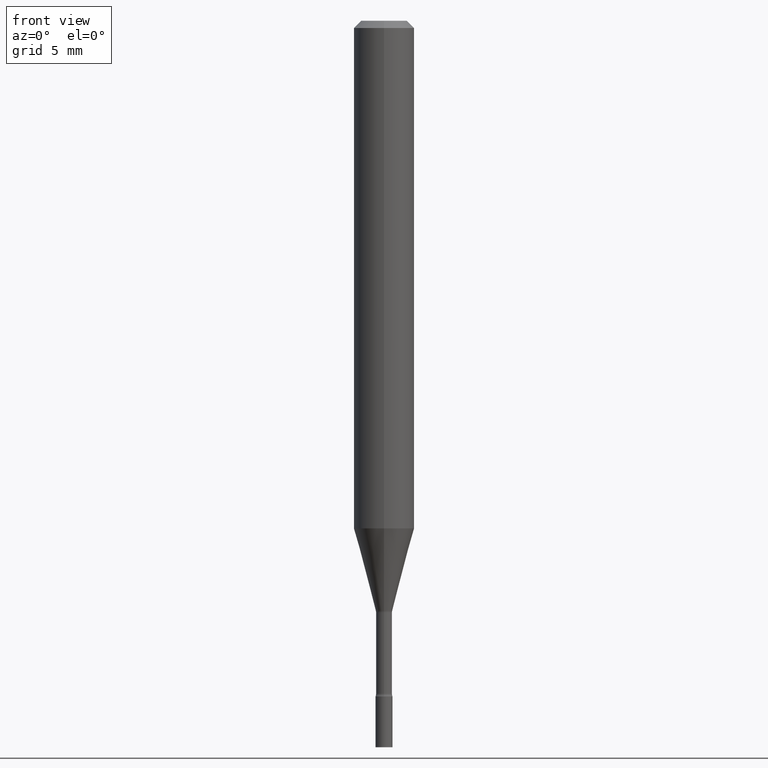
[diagram: clean part render]
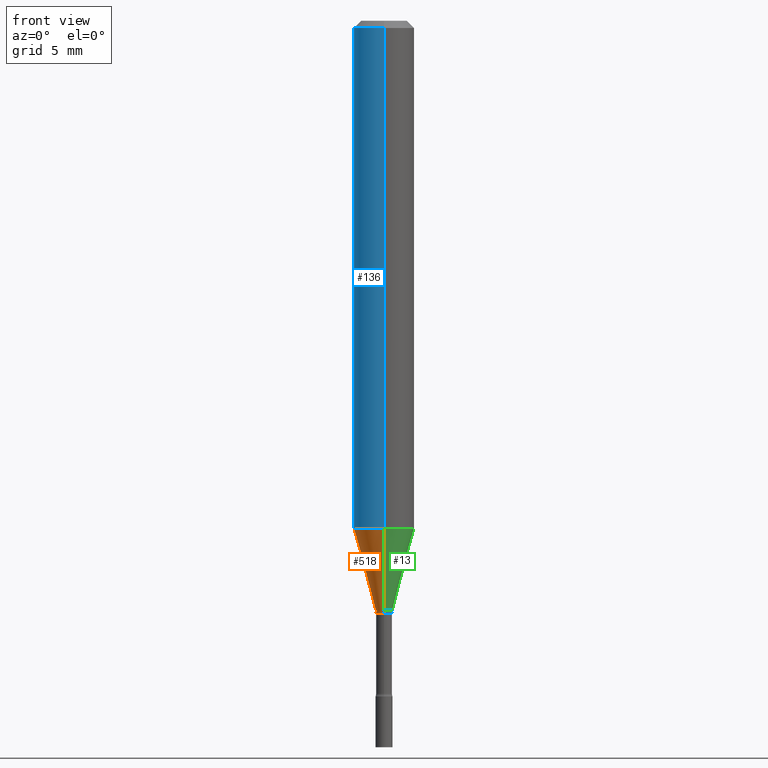
[diagram: same view with three faces highlighted in distinct colors, each labeled with its STEP entity id]
A machine part, front view with three faces highlighted in distinct colors.
Their STEP definitions:

[orange] entity #518 — the highlighted conical surface has half-angle 15 deg.
#11 = ORIENTED_EDGE ( 'NONE', *, *, #298, .T. ) ;
#30 = DIRECTION ( 'NONE',  ( -6.982962677686265922E-15, -1.000000000000000000, 4.370956789862821150E-15 ) ) ;
#35 = ORIENTED_EDGE ( 'NONE', *, *, #59, .T. ) ;
#59 = EDGE_CURVE ( 'NONE', #430, #395, #486, .T. ) ;
#75 = DIRECTION ( 'NONE',  ( -2.445445466582800548E-29, 3.491514762482098518E-15, 1.000000000000000000 ) ) ;
#87 = CARTESIAN_POINT ( 'NONE',  ( 2.978778786374188568E-29, -4.252987952059016187E-15, -1.218092501787273241 ) ) ;
#103 = DIRECTION ( 'NONE',  ( -1.807323732225328562E-15, -0.2588190451025179639, 0.9659258262890690894 ) ) ;
#104 = VECTOR ( 'NONE', #103, 39.37007874015748854 ) ;
#108 = CARTESIAN_POINT ( 'NONE',  ( 1.205159535236658201E-16, 0.01696111260565972417, -1.218092501787273241 ) ) ;
#109 = VERTEX_POINT ( 'NONE', #245 ) ;
#123 = DIRECTION ( 'NONE',  ( -6.982962677686266711E-15, -1.000000000000000000, 0.000000000000000000 ) ) ;
#131 = CARTESIAN_POINT ( 'NONE',  ( 2.978778786374188568E-29, -4.252987952059016187E-15, -1.218092501787273241 ) ) ;
#135 = VECTOR ( 'NONE', #228, 39.37007874015748854 ) ;
#152 = CARTESIAN_POINT ( 'NONE',  ( -4.364351673553661300E-16, -0.06250000000000369149, -1.048139060311453319 ) ) ;
#173 = DIRECTION ( 'NONE',  ( -6.982962677686266711E-15, -1.000000000000000000, 0.000000000000000000 ) ) ;
#186 = ORIENTED_EDGE ( 'NONE', *, *, #366, .F. ) ;
#215 = DIRECTION ( 'NONE',  ( -2.445445466582800548E-29, 3.491514762482098518E-15, 1.000000000000000000 ) ) ;
#228 = DIRECTION ( 'NONE',  ( 1.839019923739598738E-15, 0.2588190451025247363, 0.9659258262890673130 ) ) ;
#240 = AXIS2_PLACEMENT_3D ( 'NONE', #87, #321, #123 ) ;
#245 = CARTESIAN_POINT ( 'NONE',  ( 4.440892098500881555E-16, 0.06249999999999632933, -1.048139060311453985 ) ) ;
#255 = LINE ( 'NONE', #373, #104 ) ;
#274 = CARTESIAN_POINT ( 'NONE',  ( 2.823025816868771357E-16, 0.01696111260565972764, -1.218092501787273241 ) ) ;
#298 = EDGE_CURVE ( 'NONE', #395, #374, #255, .T. ) ;
#321 = DIRECTION ( 'NONE',  ( -2.445445466582800548E-29, 3.491514762482098518E-15, 1.000000000000000000 ) ) ;
#326 = AXIS2_PLACEMENT_3D ( 'NONE', #131, #215, #173 ) ;
#337 = CONICAL_SURFACE ( 'NONE', #240, 0.01696111260566397771, 0.2617993877991500740 ) ;
#355 = CARTESIAN_POINT ( 'NONE',  ( -1.184388162973558367E-16, -0.01696111260566823126, -1.218092501787273241 ) ) ;
#366 = EDGE_CURVE ( 'NONE', #430, #109, #511, .T. ) ;
#373 = CARTESIAN_POINT ( 'NONE',  ( -1.184388162973558367E-16, -0.01696111260566823126, -1.218092501787273241 ) ) ;
#374 = VERTEX_POINT ( 'NONE', #152 ) ;
#395 = VERTEX_POINT ( 'NONE', #355 ) ;
#415 = EDGE_LOOP ( 'NONE', ( #186, #35, #11, #431 ) ) ;
#417 = AXIS2_PLACEMENT_3D ( 'NONE', #509, #75, #30 ) ;
#430 = VERTEX_POINT ( 'NONE', #274 ) ;
#431 = ORIENTED_EDGE ( 'NONE', *, *, #476, .F. ) ;
#438 = FACE_OUTER_BOUND ( 'NONE', #415, .T. ) ;
#461 = CIRCLE ( 'NONE', #417, 0.06250000000000000000 ) ;
#476 = EDGE_CURVE ( 'NONE', #109, #374, #461, .T. ) ;
#486 = CIRCLE ( 'NONE', #326, 0.01696111260566397771 ) ;
#509 = CARTESIAN_POINT ( 'NONE',  ( 2.563166913387000657E-29, -3.659593002211555203E-15, -1.048139060311453763 ) ) ;
#511 = LINE ( 'NONE', #108, #135 ) ;
#518 = ADVANCED_FACE ( 'NONE', ( #438 ), #337, .T. ) ;

[blue] entity #136 — the highlighted cylindrical surface (edge-blend (fillet) strip) has radius 1.5875 mm, axis along (-0, 0, 1).
#10 = LINE ( 'NONE', #336, #354 ) ;
#27 = EDGE_CURVE ( 'NONE', #374, #390, #50, .T. ) ;
#30 = DIRECTION ( 'NONE',  ( -6.982962677686265922E-15, -1.000000000000000000, 4.370956789862821150E-15 ) ) ;
#40 = FACE_OUTER_BOUND ( 'NONE', #316, .T. ) ;
#47 = CARTESIAN_POINT ( 'NONE',  ( -4.364351673553916201E-16, -0.06250000000000000000, 2.182196726551311574E-16 ) ) ;
#50 = LINE ( 'NONE', #47, #63 ) ;
#51 = AXIS2_PLACEMENT_3D ( 'NONE', #364, #325, #167 ) ;
#60 = DIRECTION ( 'NONE',  ( -6.982962677686265922E-15, -1.000000000000000000, 3.483106191921935554E-15 ) ) ;
#63 = VECTOR ( 'NONE', #329, 39.37007874015748143 ) ;
#72 = AXIS2_PLACEMENT_3D ( 'NONE', #371, #295, #60 ) ;
#75 = DIRECTION ( 'NONE',  ( -2.445445466582800548E-29, 3.491514762482098518E-15, 1.000000000000000000 ) ) ;
#80 = CARTESIAN_POINT ( 'NONE',  ( 4.440892098500883528E-16, 0.06249999999999993755, -0.01500000000000024751 ) ) ;
#107 = CARTESIAN_POINT ( 'NONE',  ( -4.364351673553912750E-16, -0.06250000000000005551, -0.01499999999999981209 ) ) ;
#109 = VERTEX_POINT ( 'NONE', #245 ) ;
#119 = ORIENTED_EDGE ( 'NONE', *, *, #27, .T. ) ;
#136 = ADVANCED_FACE ( 'NONE', ( #40 ), #207, .T. ) ;
#152 = CARTESIAN_POINT ( 'NONE',  ( -4.364351673553661300E-16, -0.06250000000000369149, -1.048139060311453319 ) ) ;
#167 = DIRECTION ( 'NONE',  ( -6.982962677686265922E-15, -1.000000000000000000, 3.491514762482098518E-15 ) ) ;
#190 = ORIENTED_EDGE ( 'NONE', *, *, #476, .T. ) ;
#207 = CYLINDRICAL_SURFACE ( 'NONE', #51, 0.06250000000000000000 ) ;
#245 = CARTESIAN_POINT ( 'NONE',  ( 4.440892098500881555E-16, 0.06249999999999632933, -1.048139060311453985 ) ) ;
#267 = EDGE_CURVE ( 'NONE', #475, #390, #288, .T. ) ;
#288 = CIRCLE ( 'NONE', #72, 0.06250000000000000000 ) ;
#295 = DIRECTION ( 'NONE',  ( -2.445445466582800548E-29, 3.491514762482098518E-15, 1.000000000000000000 ) ) ;
#316 = EDGE_LOOP ( 'NONE', ( #348, #190, #119, #465 ) ) ;
#323 = EDGE_CURVE ( 'NONE', #109, #475, #10, .T. ) ;
#325 = DIRECTION ( 'NONE',  ( -2.445445466582800548E-29, 3.491514762482098518E-15, 1.000000000000000000 ) ) ;
#329 = DIRECTION ( 'NONE',  ( -2.445445466582800548E-29, 3.491514762482098912E-15, 1.000000000000000000 ) ) ;
#336 = CARTESIAN_POINT ( 'NONE',  ( 4.440892098500625669E-16, 0.06250000000000000000, -2.182196726551311574E-16 ) ) ;
#348 = ORIENTED_EDGE ( 'NONE', *, *, #323, .F. ) ;
#354 = VECTOR ( 'NONE', #380, 39.37007874015748143 ) ;
#364 = CARTESIAN_POINT ( 'NONE',  ( 0.000000000000000000, 0.000000000000000000, 0.000000000000000000 ) ) ;
#371 = CARTESIAN_POINT ( 'NONE',  ( 3.668168199874207899E-31, -5.237272143723158550E-17, -0.01500000000000003067 ) ) ;
#374 = VERTEX_POINT ( 'NONE', #152 ) ;
#380 = DIRECTION ( 'NONE',  ( -2.445445466582800548E-29, 3.491514762482098912E-15, 1.000000000000000000 ) ) ;
#390 = VERTEX_POINT ( 'NONE', #107 ) ;
#417 = AXIS2_PLACEMENT_3D ( 'NONE', #509, #75, #30 ) ;
#461 = CIRCLE ( 'NONE', #417, 0.06250000000000000000 ) ;
#465 = ORIENTED_EDGE ( 'NONE', *, *, #267, .F. ) ;
#475 = VERTEX_POINT ( 'NONE', #80 ) ;
#476 = EDGE_CURVE ( 'NONE', #109, #374, #461, .T. ) ;
#509 = CARTESIAN_POINT ( 'NONE',  ( 2.563166913387000657E-29, -3.659593002211555203E-15, -1.048139060311453763 ) ) ;

[green] entity #13 — the highlighted conical surface has half-angle 15 deg.
#2 = CARTESIAN_POINT ( 'NONE',  ( 2.978778786374188568E-29, -4.252987952059016187E-15, -1.218092501787273241 ) ) ;
#12 = AXIS2_PLACEMENT_3D ( 'NONE', #2, #445, #94 ) ;
#13 = ADVANCED_FACE ( 'NONE', ( #437 ), #71, .T. ) ;
#70 = ORIENTED_EDGE ( 'NONE', *, *, #361, .T. ) ;
#71 = CONICAL_SURFACE ( 'NONE', #12, 0.01696111260566397771, 0.2617993877991500740 ) ;
#94 = DIRECTION ( 'NONE',  ( -6.982962677686266711E-15, -1.000000000000000000, 0.000000000000000000 ) ) ;
#103 = DIRECTION ( 'NONE',  ( -1.807323732225328562E-15, -0.2588190451025179639, 0.9659258262890690894 ) ) ;
#104 = VECTOR ( 'NONE', #103, 39.37007874015748854 ) ;
#108 = CARTESIAN_POINT ( 'NONE',  ( 1.205159535236658201E-16, 0.01696111260565972417, -1.218092501787273241 ) ) ;
#109 = VERTEX_POINT ( 'NONE', #245 ) ;
#116 = DIRECTION ( 'NONE',  ( -2.445445466582800548E-29, 3.491514762482098518E-15, 1.000000000000000000 ) ) ;
#135 = VECTOR ( 'NONE', #228, 39.37007874015748854 ) ;
#152 = CARTESIAN_POINT ( 'NONE',  ( -4.364351673553661300E-16, -0.06250000000000369149, -1.048139060311453319 ) ) ;
#205 = AXIS2_PLACEMENT_3D ( 'NONE', #472, #234, #231 ) ;
#228 = DIRECTION ( 'NONE',  ( 1.839019923739598738E-15, 0.2588190451025247363, 0.9659258262890673130 ) ) ;
#231 = DIRECTION ( 'NONE',  ( -6.982962677686266711E-15, -1.000000000000000000, 0.000000000000000000 ) ) ;
#234 = DIRECTION ( 'NONE',  ( -2.445445466582800548E-29, 3.491514762482098518E-15, 1.000000000000000000 ) ) ;
#235 = ORIENTED_EDGE ( 'NONE', *, *, #366, .T. ) ;
#236 = DIRECTION ( 'NONE',  ( -6.982962677686265922E-15, -1.000000000000000000, 4.370956789862821150E-15 ) ) ;
#245 = CARTESIAN_POINT ( 'NONE',  ( 4.440892098500881555E-16, 0.06249999999999632933, -1.048139060311453985 ) ) ;
#255 = LINE ( 'NONE', #373, #104 ) ;
#274 = CARTESIAN_POINT ( 'NONE',  ( 2.823025816868771357E-16, 0.01696111260565972764, -1.218092501787273241 ) ) ;
#298 = EDGE_CURVE ( 'NONE', #395, #374, #255, .T. ) ;
#320 = CIRCLE ( 'NONE', #205, 0.01696111260566397771 ) ;
#355 = CARTESIAN_POINT ( 'NONE',  ( -1.184388162973558367E-16, -0.01696111260566823126, -1.218092501787273241 ) ) ;
#361 = EDGE_CURVE ( 'NONE', #395, #430, #320, .T. ) ;
#366 = EDGE_CURVE ( 'NONE', #430, #109, #511, .T. ) ;
#373 = CARTESIAN_POINT ( 'NONE',  ( -1.184388162973558367E-16, -0.01696111260566823126, -1.218092501787273241 ) ) ;
#374 = VERTEX_POINT ( 'NONE', #152 ) ;
#376 = ORIENTED_EDGE ( 'NONE', *, *, #298, .F. ) ;
#392 = ORIENTED_EDGE ( 'NONE', *, *, #468, .F. ) ;
#395 = VERTEX_POINT ( 'NONE', #355 ) ;
#430 = VERTEX_POINT ( 'NONE', #274 ) ;
#437 = FACE_OUTER_BOUND ( 'NONE', #514, .T. ) ;
#445 = DIRECTION ( 'NONE',  ( -2.445445466582800548E-29, 3.491514762482098518E-15, 1.000000000000000000 ) ) ;
#447 = CIRCLE ( 'NONE', #517, 0.06250000000000000000 ) ;
#468 = EDGE_CURVE ( 'NONE', #374, #109, #447, .T. ) ;
#472 = CARTESIAN_POINT ( 'NONE',  ( 2.978778786374188568E-29, -4.252987952059016187E-15, -1.218092501787273241 ) ) ;
#474 = CARTESIAN_POINT ( 'NONE',  ( 2.563166913387000657E-29, -3.659593002211555203E-15, -1.048139060311453763 ) ) ;
#511 = LINE ( 'NONE', #108, #135 ) ;
#514 = EDGE_LOOP ( 'NONE', ( #70, #235, #392, #376 ) ) ;
#517 = AXIS2_PLACEMENT_3D ( 'NONE', #474, #116, #236 ) ;